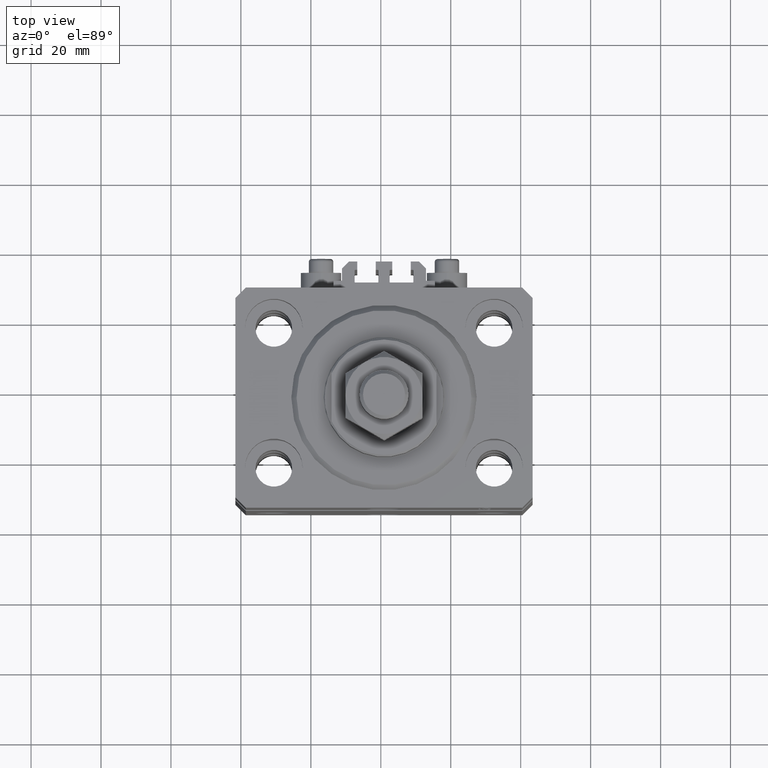
[diagram: clean part render]
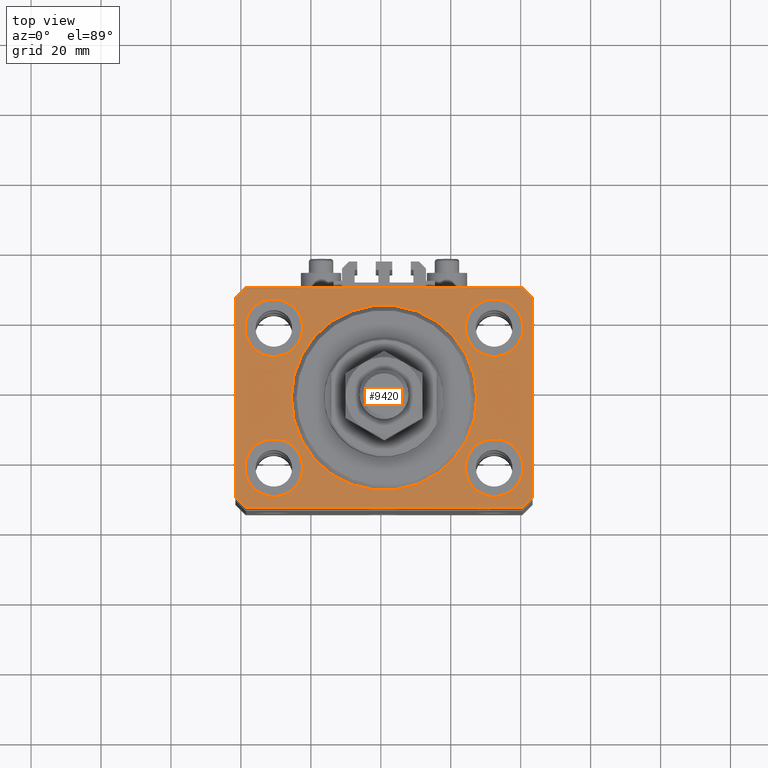
[diagram: same view with one face highlighted and labeled with its STEP entity id]
A machine part, top view. The second image highlights one B-rep face of the part: STEP entity #9420.
In plain terms, the highlighted planar face has unit normal (0, 0, 1).
Its self-contained STEP definition (entity closure, byte-faithful):
#347 = FACE_BOUND ( 'NONE', #47422, .T. ) ;
#1053 = CARTESIAN_POINT ( 'NONE',  ( -39.50000000000000711, -31.50000000000000000, 0.000000000000000000 ) ) ;
#1389 = DIRECTION ( 'NONE',  ( 0.000000000000000000, 0.000000000000000000, 1.000000000000000000 ) ) ;
#1817 = CARTESIAN_POINT ( 'NONE',  ( -39.50000000000000711, 31.50000000000000000, 0.000000000000000000 ) ) ;
#2013 = LINE ( 'NONE', #43523, #27332 ) ;
#2142 = LINE ( 'NONE', #5431, #9536 ) ;
#2252 = ORIENTED_EDGE ( 'NONE', *, *, #37899, .T. ) ;
#2606 = DIRECTION ( 'NONE',  ( 1.000000000000000000, 0.000000000000000000, 0.000000000000000000 ) ) ;
#3155 = EDGE_CURVE ( 'NONE', #21393, #36910, #26802, .T. ) ;
#4018 = VECTOR ( 'NONE', #24814, 1000.000000000000000 ) ;
#4119 = CARTESIAN_POINT ( 'NONE',  ( 0.000000000000000000, 0.000000000000000000, 0.000000000000000000 ) ) ;
#4262 = EDGE_CURVE ( 'NONE', #9148, #8222, #44498, .T. ) ;
#4547 = CARTESIAN_POINT ( 'NONE',  ( 31.50000000000000000, 20.00000000000001066, 0.000000000000000000 ) ) ;
#4702 = ORIENTED_EDGE ( 'NONE', *, *, #49284, .T. ) ;
#5345 = ORIENTED_EDGE ( 'NONE', *, *, #39833, .T. ) ;
#5366 = VERTEX_POINT ( 'NONE', #37514 ) ;
#5431 = CARTESIAN_POINT ( 'NONE',  ( 42.50000000000051870, 28.49999999999995381, 0.000000000000000000 ) ) ;
#6679 = VERTEX_POINT ( 'NONE', #37836 ) ;
#7242 = DIRECTION ( 'NONE',  ( 1.000000000000000000, 0.000000000000000000, 0.000000000000000000 ) ) ;
#7538 = VERTEX_POINT ( 'NONE', #46611 ) ;
#7643 = VERTEX_POINT ( 'NONE', #1817 ) ;
#7684 = DIRECTION ( 'NONE',  ( 0.000000000000000000, 0.000000000000000000, 1.000000000000000000 ) ) ;
#8056 = VERTEX_POINT ( 'NONE', #24893 ) ;
#8108 = ORIENTED_EDGE ( 'NONE', *, *, #41882, .F. ) ;
#8142 = PLANE ( 'NONE',  #44711 ) ;
#8222 = VERTEX_POINT ( 'NONE', #43452 ) ;
#8446 = CARTESIAN_POINT ( 'NONE',  ( -31.50000000000000000, -20.00000000000000000, 0.000000000000000000 ) ) ;
#8663 = VERTEX_POINT ( 'NONE', #21006 ) ;
#9078 = VERTEX_POINT ( 'NONE', #14755 ) ;
#9148 = VERTEX_POINT ( 'NONE', #33032 ) ;
#9420 = ADVANCED_FACE ( 'NONE', ( #27969, #27730, #347, #27484, #30999, #42595 ), #8142, .T. ) ;
#9438 = EDGE_CURVE ( 'NONE', #13610, #8056, #23487, .T. ) ;
#9536 = VECTOR ( 'NONE', #43408, 1000.000000000000114 ) ;
#9866 = EDGE_LOOP ( 'NONE', ( #27965, #8108 ) ) ;
#9983 = EDGE_LOOP ( 'NONE', ( #33776, #29778 ) ) ;
#10600 = CARTESIAN_POINT ( 'NONE',  ( 26.50000000000000355, 0.000000000000000000, 0.000000000000000000 ) ) ;
#10695 = EDGE_CURVE ( 'NONE', #19230, #12259, #39142, .T. ) ;
#11323 = DIRECTION ( 'NONE',  ( 0.7071067811865483499, 0.7071067811865466846, 0.000000000000000000 ) ) ;
#11875 = LINE ( 'NONE', #27451, #48953 ) ;
#12259 = VERTEX_POINT ( 'NONE', #10600 ) ;
#12386 = VECTOR ( 'NONE', #40403, 1000.000000000000000 ) ;
#13098 = AXIS2_PLACEMENT_3D ( 'NONE', #45910, #7684, #23033 ) ;
#13494 = CARTESIAN_POINT ( 'NONE',  ( -39.50000000000000711, 31.50000000000000000, 0.000000000000000000 ) ) ;
#13610 = VERTEX_POINT ( 'NONE', #28565 ) ;
#14755 = CARTESIAN_POINT ( 'NONE',  ( 42.50000000000000711, -28.50000000000000355, 0.000000000000000000 ) ) ;
#15279 = CARTESIAN_POINT ( 'NONE',  ( -23.25000000000000000, 20.00000000000000000, 0.000000000000000000 ) ) ;
#15500 = VERTEX_POINT ( 'NONE', #35339 ) ;
#15670 = AXIS2_PLACEMENT_3D ( 'NONE', #36658, #32351, #43948 ) ;
#16163 = EDGE_CURVE ( 'NONE', #19924, #39470, #19941, .T. ) ;
#16620 = CARTESIAN_POINT ( 'NONE',  ( 0.000000000000000000, 0.000000000000000000, 0.000000000000000000 ) ) ;
#17738 = CARTESIAN_POINT ( 'NONE',  ( -23.25000000000000000, -20.00000000000000000, 0.000000000000000000 ) ) ;
#17968 = ORIENTED_EDGE ( 'NONE', *, *, #10695, .F. ) ;
#18015 = EDGE_LOOP ( 'NONE', ( #35636, #46703 ) ) ;
#18720 = ORIENTED_EDGE ( 'NONE', *, *, #25816, .F. ) ;
#18921 = DIRECTION ( 'NONE',  ( 1.000000000000000000, 0.000000000000000000, 0.000000000000000000 ) ) ;
#19230 = VERTEX_POINT ( 'NONE', #37944 ) ;
#19756 = DIRECTION ( 'NONE',  ( 1.000000000000000000, 0.000000000000000000, 0.000000000000000000 ) ) ;
#19924 = VERTEX_POINT ( 'NONE', #17738 ) ;
#19941 = CIRCLE ( 'NONE', #36771, 8.250000000000000000 ) ;
#19952 = DIRECTION ( 'NONE',  ( 0.7071067811865471286, -0.7071067811865479058, 0.000000000000000000 ) ) ;
#20077 = CARTESIAN_POINT ( 'NONE',  ( -31.50000000000000000, -20.00000000000000000, 0.000000000000000000 ) ) ;
#20639 = DIRECTION ( 'NONE',  ( -1.000000000000000000, 0.000000000000000000, 0.000000000000000000 ) ) ;
#20901 = CARTESIAN_POINT ( 'NONE',  ( -39.75000000000000000, -20.00000000000000000, 0.000000000000000000 ) ) ;
#21006 = CARTESIAN_POINT ( 'NONE',  ( 23.25000000000000355, 20.00000000000001066, 0.000000000000000000 ) ) ;
#21194 = CARTESIAN_POINT ( 'NONE',  ( 39.50000000000000711, -31.50000000000000000, 0.000000000000000000 ) ) ;
#21331 = DIRECTION ( 'NONE',  ( 0.000000000000000000, -1.000000000000000000, 0.000000000000000000 ) ) ;
#21393 = VERTEX_POINT ( 'NONE', #45767 ) ;
#21981 = DIRECTION ( 'NONE',  ( 0.000000000000000000, 0.000000000000000000, 1.000000000000000000 ) ) ;
#22297 = AXIS2_PLACEMENT_3D ( 'NONE', #16620, #39974, #40735 ) ;
#23033 = DIRECTION ( 'NONE',  ( 1.000000000000000000, 0.000000000000000000, 0.000000000000000000 ) ) ;
#23487 = LINE ( 'NONE', #42832, #24626 ) ;
#24272 = DIRECTION ( 'NONE',  ( 1.000000000000000000, 0.000000000000000000, 0.000000000000000000 ) ) ;
#24626 = VECTOR ( 'NONE', #19952, 1000.000000000000000 ) ;
#24814 = DIRECTION ( 'NONE',  ( 8.886653596232072440E-15, 1.000000000000000000, 0.000000000000000000 ) ) ;
#24893 = CARTESIAN_POINT ( 'NONE',  ( -39.50000000000000711, -31.50000000000000000, 0.000000000000000000 ) ) ;
#25074 = EDGE_CURVE ( 'NONE', #7643, #5366, #44187, .T. ) ;
#25277 = VECTOR ( 'NONE', #11323, 1000.000000000000000 ) ;
#25438 = EDGE_CURVE ( 'NONE', #7538, #9078, #44079, .T. ) ;
#25743 = AXIS2_PLACEMENT_3D ( 'NONE', #4547, #46539, #18921 ) ;
#25816 = EDGE_CURVE ( 'NONE', #12259, #19230, #38916, .T. ) ;
#26092 = DIRECTION ( 'NONE',  ( 0.000000000000000000, 0.000000000000000000, 1.000000000000000000 ) ) ;
#26802 = CIRCLE ( 'NONE', #13098, 8.250000000000000000 ) ;
#27113 = DIRECTION ( 'NONE',  ( 1.000000000000000000, 0.000000000000000000, 0.000000000000000000 ) ) ;
#27332 = VECTOR ( 'NONE', #20639, 1000.000000000000000 ) ;
#27337 = CIRCLE ( 'NONE', #47405, 8.250000000000000000 ) ;
#27451 = CARTESIAN_POINT ( 'NONE',  ( -42.50000000000000000, 28.50000000000000000, 0.000000000000000000 ) ) ;
#27484 = FACE_BOUND ( 'NONE', #18015, .T. ) ;
#27506 = ORIENTED_EDGE ( 'NONE', *, *, #42015, .F. ) ;
#27730 = FACE_BOUND ( 'NONE', #9983, .T. ) ;
#27848 = DIRECTION ( 'NONE',  ( 0.000000000000000000, 0.000000000000000000, 1.000000000000000000 ) ) ;
#27965 = ORIENTED_EDGE ( 'NONE', *, *, #16163, .F. ) ;
#27969 = FACE_BOUND ( 'NONE', #9866, .T. ) ;
#28565 = CARTESIAN_POINT ( 'NONE',  ( -42.50000000000000000, -28.50000000000000000, 0.000000000000000000 ) ) ;
#28824 = LINE ( 'NONE', #40398, #4018 ) ;
#29778 = ORIENTED_EDGE ( 'NONE', *, *, #4262, .F. ) ;
#30644 = CIRCLE ( 'NONE', #46691, 8.250000000000000000 ) ;
#30842 = AXIS2_PLACEMENT_3D ( 'NONE', #48874, #21981, #2606 ) ;
#30999 = FACE_BOUND ( 'NONE', #39477, .T. ) ;
#31873 = CIRCLE ( 'NONE', #37558, 8.249999999999992895 ) ;
#31927 = CARTESIAN_POINT ( 'NONE',  ( 39.50000000000056843, 31.50000000000000000, 0.000000000000000000 ) ) ;
#32351 = DIRECTION ( 'NONE',  ( 0.000000000000000000, 0.000000000000000000, 1.000000000000000000 ) ) ;
#32482 = ORIENTED_EDGE ( 'NONE', *, *, #41586, .T. ) ;
#32930 = CARTESIAN_POINT ( 'NONE',  ( -31.50000000000000000, 20.00000000000000000, 0.000000000000000000 ) ) ;
#33032 = CARTESIAN_POINT ( 'NONE',  ( 23.25000000000000355, -20.00000000000000000, 0.000000000000000000 ) ) ;
#33776 = ORIENTED_EDGE ( 'NONE', *, *, #33821, .F. ) ;
#33821 = EDGE_CURVE ( 'NONE', #8222, #9148, #35061, .T. ) ;
#34147 = ORIENTED_EDGE ( 'NONE', *, *, #9438, .T. ) ;
#35022 = DIRECTION ( 'NONE',  ( 1.000000000000000000, 0.000000000000000000, -0.000000000000000000 ) ) ;
#35061 = CIRCLE ( 'NONE', #40701, 8.249999999999992895 ) ;
#35158 = EDGE_CURVE ( 'NONE', #6679, #8663, #31873, .T. ) ;
#35282 = DIRECTION ( 'NONE',  ( 0.000000000000000000, 0.000000000000000000, 1.000000000000000000 ) ) ;
#35339 = CARTESIAN_POINT ( 'NONE',  ( 42.50000000000051870, 28.49999999999995381, 0.000000000000000000 ) ) ;
#35590 = CARTESIAN_POINT ( 'NONE',  ( 31.50000000000000000, -20.00000000000000000, 0.000000000000000000 ) ) ;
#35636 = ORIENTED_EDGE ( 'NONE', *, *, #43673, .F. ) ;
#35825 = DIRECTION ( 'NONE',  ( 0.000000000000000000, 0.000000000000000000, 1.000000000000000000 ) ) ;
#36658 = CARTESIAN_POINT ( 'NONE',  ( 0.000000000000000000, 0.000000000000000000, 0.000000000000000000 ) ) ;
#36771 = AXIS2_PLACEMENT_3D ( 'NONE', #20077, #27848, #27113 ) ;
#36910 = VERTEX_POINT ( 'NONE', #15279 ) ;
#37514 = CARTESIAN_POINT ( 'NONE',  ( -42.50000000000000000, 28.50000000000000000, 0.000000000000000000 ) ) ;
#37558 = AXIS2_PLACEMENT_3D ( 'NONE', #46893, #46403, #19756 ) ;
#37836 = CARTESIAN_POINT ( 'NONE',  ( 39.74999999999999289, 20.00000000000001066, 0.000000000000000000 ) ) ;
#37899 = EDGE_CURVE ( 'NONE', #15500, #43527, #2142, .T. ) ;
#37944 = CARTESIAN_POINT ( 'NONE',  ( -26.50000000000000355, 3.245314017740486554E-15, 0.000000000000000000 ) ) ;
#38916 = CIRCLE ( 'NONE', #15670, 26.50000000000000355 ) ;
#39142 = CIRCLE ( 'NONE', #22297, 26.50000000000000355 ) ;
#39277 = LINE ( 'NONE', #1053, #49755 ) ;
#39470 = VERTEX_POINT ( 'NONE', #20901 ) ;
#39477 = EDGE_LOOP ( 'NONE', ( #18720, #17968 ) ) ;
#39833 = EDGE_CURVE ( 'NONE', #8056, #7538, #39277, .T. ) ;
#39974 = DIRECTION ( 'NONE',  ( 0.000000000000000000, 0.000000000000000000, 1.000000000000000000 ) ) ;
#40102 = DIRECTION ( 'NONE',  ( 1.000000000000000000, 0.000000000000000000, 0.000000000000000000 ) ) ;
#40398 = CARTESIAN_POINT ( 'NONE',  ( 42.50000000000000711, -28.50000000000000355, 0.000000000000000000 ) ) ;
#40403 = DIRECTION ( 'NONE',  ( -0.7071067811865471286, -0.7071067811865479058, 0.000000000000000000 ) ) ;
#40701 = AXIS2_PLACEMENT_3D ( 'NONE', #35590, #1389, #40102 ) ;
#40735 = DIRECTION ( 'NONE',  ( 1.000000000000000000, 0.000000000000000000, 0.000000000000000000 ) ) ;
#41502 = ORIENTED_EDGE ( 'NONE', *, *, #25438, .T. ) ;
#41586 = EDGE_CURVE ( 'NONE', #9078, #15500, #28824, .T. ) ;
#41882 = EDGE_CURVE ( 'NONE', #39470, #19924, #27337, .T. ) ;
#42015 = EDGE_CURVE ( 'NONE', #8663, #6679, #42619, .T. ) ;
#42595 = FACE_OUTER_BOUND ( 'NONE', #47311, .T. ) ;
#42619 = CIRCLE ( 'NONE', #25743, 8.249999999999992895 ) ;
#42832 = CARTESIAN_POINT ( 'NONE',  ( -42.50000000000000000, -28.50000000000000000, 0.000000000000000000 ) ) ;
#43408 = DIRECTION ( 'NONE',  ( -0.7071067811865356934, 0.7071067811865594521, 0.000000000000000000 ) ) ;
#43452 = CARTESIAN_POINT ( 'NONE',  ( 39.74999999999999289, -20.00000000000000000, 0.000000000000000000 ) ) ;
#43523 = CARTESIAN_POINT ( 'NONE',  ( 39.50000000000056843, 31.50000000000000000, 0.000000000000000000 ) ) ;
#43527 = VERTEX_POINT ( 'NONE', #31927 ) ;
#43673 = EDGE_CURVE ( 'NONE', #36910, #21393, #30644, .T. ) ;
#43948 = DIRECTION ( 'NONE',  ( 1.000000000000000000, 0.000000000000000000, 0.000000000000000000 ) ) ;
#44079 = LINE ( 'NONE', #21194, #25277 ) ;
#44187 = LINE ( 'NONE', #13494, #12386 ) ;
#44451 = EDGE_CURVE ( 'NONE', #43527, #7643, #2013, .T. ) ;
#44498 = CIRCLE ( 'NONE', #30842, 8.249999999999992895 ) ;
#44711 = AXIS2_PLACEMENT_3D ( 'NONE', #4119, #35282, #35022 ) ;
#45097 = ORIENTED_EDGE ( 'NONE', *, *, #35158, .F. ) ;
#45767 = CARTESIAN_POINT ( 'NONE',  ( -39.75000000000000000, 20.00000000000000000, 0.000000000000000000 ) ) ;
#45910 = CARTESIAN_POINT ( 'NONE',  ( -31.50000000000000000, 20.00000000000000000, 0.000000000000000000 ) ) ;
#46388 = ORIENTED_EDGE ( 'NONE', *, *, #25074, .T. ) ;
#46403 = DIRECTION ( 'NONE',  ( 0.000000000000000000, 0.000000000000000000, 1.000000000000000000 ) ) ;
#46539 = DIRECTION ( 'NONE',  ( 0.000000000000000000, 0.000000000000000000, 1.000000000000000000 ) ) ;
#46578 = DIRECTION ( 'NONE',  ( 1.000000000000000000, 0.000000000000000000, 0.000000000000000000 ) ) ;
#46611 = CARTESIAN_POINT ( 'NONE',  ( 39.50000000000000711, -31.50000000000000000, 0.000000000000000000 ) ) ;
#46691 = AXIS2_PLACEMENT_3D ( 'NONE', #32930, #26092, #7242 ) ;
#46703 = ORIENTED_EDGE ( 'NONE', *, *, #3155, .F. ) ;
#46893 = CARTESIAN_POINT ( 'NONE',  ( 31.50000000000000000, 20.00000000000001066, 0.000000000000000000 ) ) ;
#47311 = EDGE_LOOP ( 'NONE', ( #49700, #46388, #4702, #34147, #5345, #41502, #32482, #2252 ) ) ;
#47405 = AXIS2_PLACEMENT_3D ( 'NONE', #8446, #35825, #24272 ) ;
#47422 = EDGE_LOOP ( 'NONE', ( #45097, #27506 ) ) ;
#48874 = CARTESIAN_POINT ( 'NONE',  ( 31.50000000000000000, -20.00000000000000000, 0.000000000000000000 ) ) ;
#48953 = VECTOR ( 'NONE', #21331, 1000.000000000000000 ) ;
#49284 = EDGE_CURVE ( 'NONE', #5366, #13610, #11875, .T. ) ;
#49700 = ORIENTED_EDGE ( 'NONE', *, *, #44451, .T. ) ;
#49755 = VECTOR ( 'NONE', #46578, 1000.000000000000000 ) ;